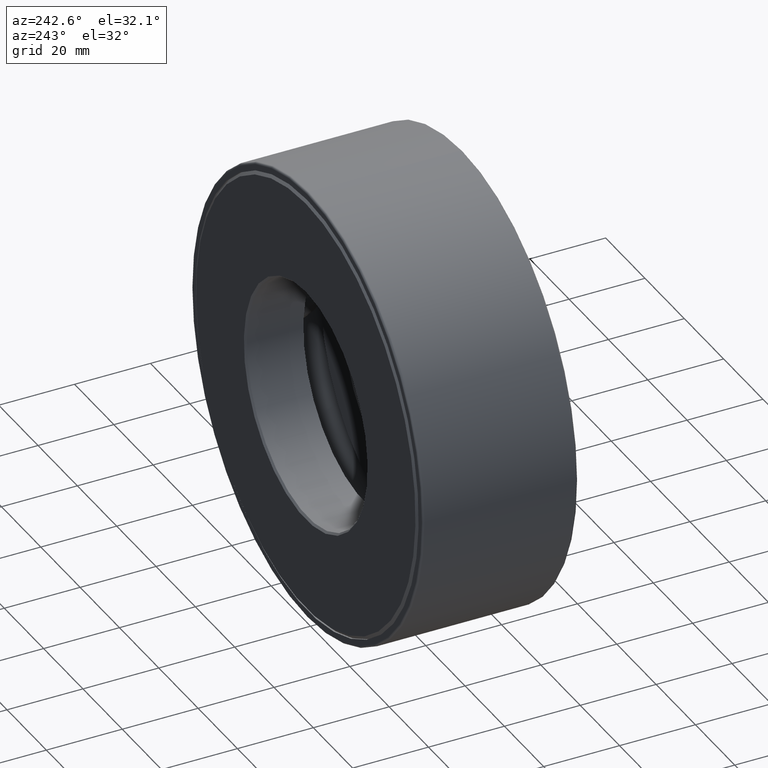
[diagram: clean part render]
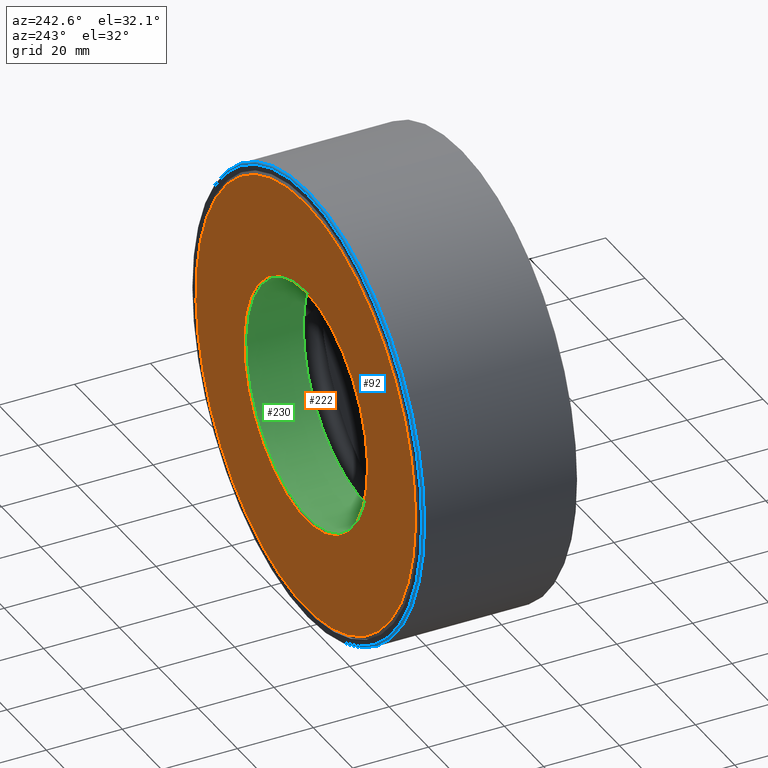
[diagram: same view with three faces highlighted in distinct colors, each labeled with its STEP entity id]
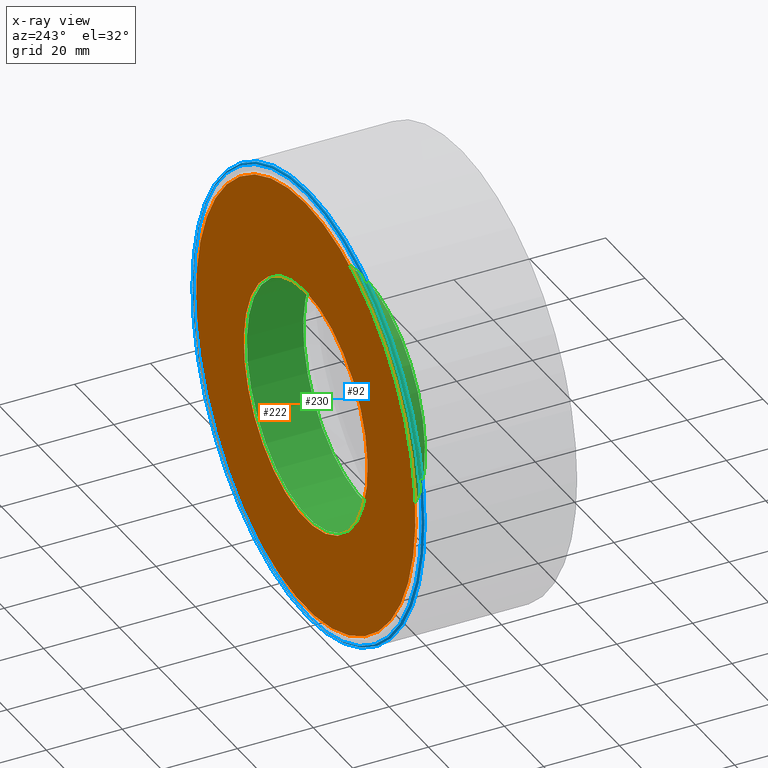
[diagram: x-ray of the same camera — body ghosted, the three highlighted faces saturated]
A machine part, auxiliary view with three faces highlighted in distinct colors.
The next image is the same camera in x-ray (body ghosted, the three faces saturated) — at least one of them is partly hidden behind the body in this view.
Their STEP definitions:

[orange] entity #222 — the highlighted planar face has unit normal (-0, 1, 0).
#7 = DIRECTION ( 'NONE',  ( 0.0000000000000000000, 0.0000000000000000000, 1.000000000000000000 ) ) ;
#33 = ORIENTED_EDGE ( 'NONE', *, *, #298, .F. ) ;
#82 = CARTESIAN_POINT ( 'NONE',  ( 0.0000000000000000000, 1.625000000000000200, 0.0000000000000000000 ) ) ;
#83 = VERTEX_POINT ( 'NONE', #423 ) ;
#156 = DIRECTION ( 'NONE',  ( -0.0000000000000000000, 1.000000000000000000, -0.0000000000000000000 ) ) ;
#164 = ORIENTED_EDGE ( 'NONE', *, *, #477, .T. ) ;
#222 = ADVANCED_FACE ( 'NONE', ( #512, #241 ), #335, .T. ) ;
#237 = AXIS2_PLACEMENT_3D ( 'NONE', #393, #383, #427 ) ;
#241 = FACE_BOUND ( 'NONE', #541, .T. ) ;
#267 = AXIS2_PLACEMENT_3D ( 'NONE', #82, #357, #358 ) ;
#290 = CIRCLE ( 'NONE', #447, 1.238750000000000200 ) ;
#298 = EDGE_CURVE ( 'NONE', #347, #347, #290, .T. ) ;
#335 = PLANE ( 'NONE',  #237 ) ;
#347 = VERTEX_POINT ( 'NONE', #552 ) ;
#357 = DIRECTION ( 'NONE',  ( -0.0000000000000000000, 1.000000000000000000, -0.0000000000000000000 ) ) ;
#358 = DIRECTION ( 'NONE',  ( 0.0000000000000000000, 0.0000000000000000000, 1.000000000000000000 ) ) ;
#383 = DIRECTION ( 'NONE',  ( -0.0000000000000000000, 1.000000000000000000, 0.0000000000000000000 ) ) ;
#387 = CARTESIAN_POINT ( 'NONE',  ( 0.0000000000000000000, 1.625000000000000000, 0.0000000000000000000 ) ) ;
#393 = CARTESIAN_POINT ( 'NONE',  ( 4.630250836719093300E-016, 1.625000000000000200, 0.0000000000000000000 ) ) ;
#397 = EDGE_LOOP ( 'NONE', ( #164 ) ) ;
#423 = CARTESIAN_POINT ( 'NONE',  ( 0.0000000000000000000, 1.625000000000000200, 2.197499999999999300 ) ) ;
#427 = DIRECTION ( 'NONE',  ( 0.0000000000000000000, 0.0000000000000000000, 1.000000000000000000 ) ) ;
#447 = AXIS2_PLACEMENT_3D ( 'NONE', #387, #156, #7 ) ;
#455 = CIRCLE ( 'NONE', #267, 2.197499999999999300 ) ;
#477 = EDGE_CURVE ( 'NONE', #83, #83, #455, .T. ) ;
#512 = FACE_OUTER_BOUND ( 'NONE', #397, .T. ) ;
#541 = EDGE_LOOP ( 'NONE', ( #33 ) ) ;
#552 = CARTESIAN_POINT ( 'NONE',  ( 0.0000000000000000000, 1.625000000000000000, 1.238750000000000200 ) ) ;

[blue] entity #92 — the highlighted toroidal blend (fillet) surface has major radius 58.2295 mm and minor (blend) radius 0.508 mm.
#9 = EDGE_LOOP ( 'NONE', ( #443 ) ) ;
#24 = DIRECTION ( 'NONE',  ( -0.0000000000000000000, 1.000000000000000000, -0.0000000000000000000 ) ) ;
#35 = CARTESIAN_POINT ( 'NONE',  ( 0.0000000000000000000, 1.589999999999999600, 0.0000000000000000000 ) ) ;
#36 = DIRECTION ( 'NONE',  ( 0.0000000000000000000, 0.0000000000000000000, 1.000000000000000000 ) ) ;
#54 = CARTESIAN_POINT ( 'NONE',  ( 0.0000000000000000000, 1.589999999999999600, 2.312500000000000000 ) ) ;
#92 = ADVANCED_FACE ( 'NONE', ( #367, #469 ), #284, .T. ) ;
#97 = AXIS2_PLACEMENT_3D ( 'NONE', #545, #314, #36 ) ;
#129 = DIRECTION ( 'NONE',  ( -0.0000000000000000000, 1.000000000000000000, -0.0000000000000000000 ) ) ;
#172 = EDGE_LOOP ( 'NONE', ( #324 ) ) ;
#257 = CIRCLE ( 'NONE', #365, 2.292500000000000000 ) ;
#284 = TOROIDAL_SURFACE ( 'NONE', #384, 2.292500000000000000, 0.02000000000000005900 ) ;
#314 = DIRECTION ( 'NONE',  ( -0.0000000000000000000, 1.000000000000000000, -0.0000000000000000000 ) ) ;
#324 = ORIENTED_EDGE ( 'NONE', *, *, #553, .T. ) ;
#352 = DIRECTION ( 'NONE',  ( 0.0000000000000000000, 0.0000000000000000000, 1.000000000000000000 ) ) ;
#365 = AXIS2_PLACEMENT_3D ( 'NONE', #410, #24, #493 ) ;
#367 = FACE_OUTER_BOUND ( 'NONE', #9, .T. ) ;
#384 = AXIS2_PLACEMENT_3D ( 'NONE', #35, #129, #352 ) ;
#399 = VERTEX_POINT ( 'NONE', #54 ) ;
#410 = CARTESIAN_POINT ( 'NONE',  ( 0.0000000000000000000, 1.609999999999999700, 0.0000000000000000000 ) ) ;
#440 = VERTEX_POINT ( 'NONE', #563 ) ;
#443 = ORIENTED_EDGE ( 'NONE', *, *, #542, .F. ) ;
#469 = FACE_OUTER_BOUND ( 'NONE', #172, .T. ) ;
#480 = CIRCLE ( 'NONE', #97, 2.312500000000000000 ) ;
#493 = DIRECTION ( 'NONE',  ( 0.0000000000000000000, 0.0000000000000000000, 1.000000000000000000 ) ) ;
#542 = EDGE_CURVE ( 'NONE', #440, #440, #257, .T. ) ;
#545 = CARTESIAN_POINT ( 'NONE',  ( 0.0000000000000000000, 1.589999999999999600, 0.0000000000000000000 ) ) ;
#553 = EDGE_CURVE ( 'NONE', #399, #399, #480, .T. ) ;
#563 = CARTESIAN_POINT ( 'NONE',  ( 0.0000000000000000000, 1.609999999999999700, 2.292500000000000000 ) ) ;

[green] entity #230 — the highlighted cylindrical surface (bore or boss wall) has radius 30.9562 mm, axis along (-0, 1, -0).
#11 = DIRECTION ( 'NONE',  ( 0.0000000000000000000, 0.0000000000000000000, 1.000000000000000000 ) ) ;
#90 = DIRECTION ( 'NONE',  ( -0.0000000000000000000, 1.000000000000000000, -0.0000000000000000000 ) ) ;
#113 = DIRECTION ( 'NONE',  ( 0.0000000000000000000, 0.0000000000000000000, 1.000000000000000000 ) ) ;
#141 = CARTESIAN_POINT ( 'NONE',  ( 0.0000000000000000000, 1.604999999999999300, 1.218750000000000000 ) ) ;
#154 = CARTESIAN_POINT ( 'NONE',  ( 0.0000000000000000000, 0.0000000000000000000, 0.0000000000000000000 ) ) ;
#155 = FACE_OUTER_BOUND ( 'NONE', #183, .T. ) ;
#157 = AXIS2_PLACEMENT_3D ( 'NONE', #231, #90, #229 ) ;
#183 = EDGE_LOOP ( 'NONE', ( #463 ) ) ;
#201 = CARTESIAN_POINT ( 'NONE',  ( 0.0000000000000000000, 1.604999999999999300, 0.0000000000000000000 ) ) ;
#205 = DIRECTION ( 'NONE',  ( -0.0000000000000000000, 1.000000000000000000, -0.0000000000000000000 ) ) ;
#213 = CYLINDRICAL_SURFACE ( 'NONE', #583, 1.218750000000000000 ) ;
#224 = VERTEX_POINT ( 'NONE', #282 ) ;
#229 = DIRECTION ( 'NONE',  ( 0.0000000000000000000, 0.0000000000000000000, 1.000000000000000000 ) ) ;
#230 = ADVANCED_FACE ( 'NONE', ( #155, #235 ), #213, .F. ) ;
#231 = CARTESIAN_POINT ( 'NONE',  ( 0.0000000000000000000, 1.018749999999999800, 0.0000000000000000000 ) ) ;
#235 = FACE_OUTER_BOUND ( 'NONE', #562, .T. ) ;
#245 = CIRCLE ( 'NONE', #157, 1.218750000000000000 ) ;
#282 = CARTESIAN_POINT ( 'NONE',  ( 0.0000000000000000000, 1.018749999999999800, 1.218750000000000000 ) ) ;
#308 = EDGE_CURVE ( 'NONE', #461, #461, #401, .T. ) ;
#378 = DIRECTION ( 'NONE',  ( -0.0000000000000000000, 1.000000000000000000, -0.0000000000000000000 ) ) ;
#401 = CIRCLE ( 'NONE', #475, 1.218750000000000000 ) ;
#412 = ORIENTED_EDGE ( 'NONE', *, *, #573, .F. ) ;
#461 = VERTEX_POINT ( 'NONE', #141 ) ;
#463 = ORIENTED_EDGE ( 'NONE', *, *, #308, .T. ) ;
#475 = AXIS2_PLACEMENT_3D ( 'NONE', #201, #205, #11 ) ;
#562 = EDGE_LOOP ( 'NONE', ( #412 ) ) ;
#573 = EDGE_CURVE ( 'NONE', #224, #224, #245, .T. ) ;
#583 = AXIS2_PLACEMENT_3D ( 'NONE', #154, #378, #113 ) ;